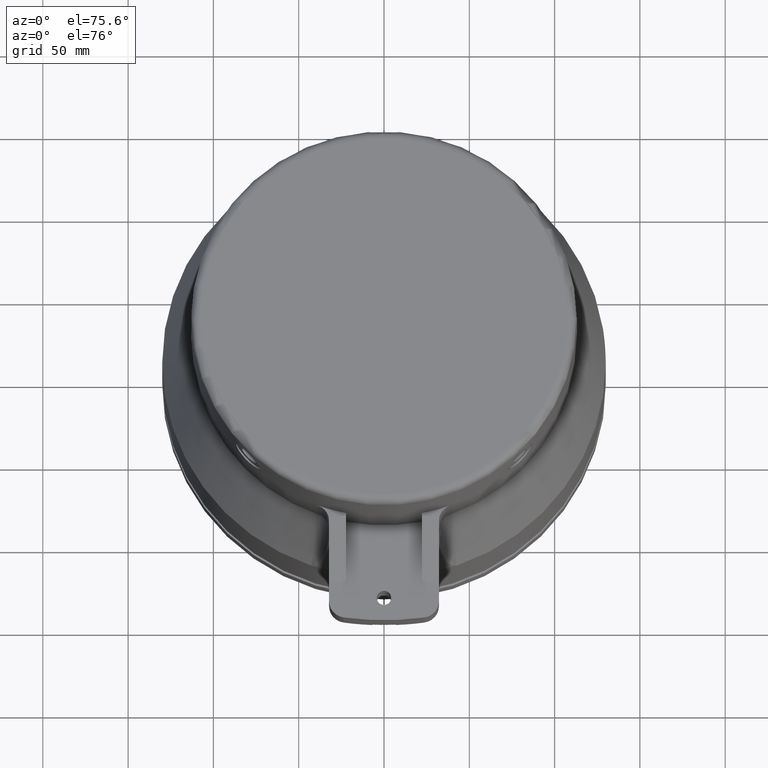
[diagram: clean part render]
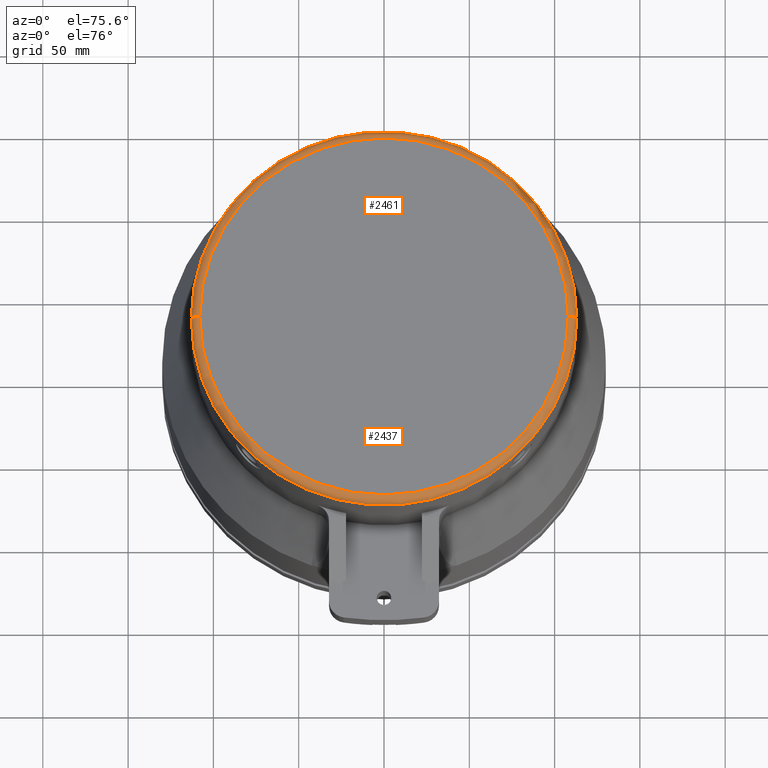
[diagram: same view with one multi-face feature highlighted, each face labeled with its STEP entity id]
A machine part, auxiliary view. The highlighted faces form ONE feature: a constant-radius fillet chain: 2 tangent blend faces with common blend radius 5 mm. The faces share edges in the B-rep.
Their STEP definitions:
[1] entity #2461 (Torus):
#1078=CARTESIAN_POINT('',(-1.08E2,5.155875726359E-13,-5.E0));
#1079=DIRECTION('',(0.E0,-1.E0,0.E0));
#1080=DIRECTION('',(0.E0,0.E0,1.E0));
#1081=AXIS2_PLACEMENT_3D('',#1078,#1079,#1080);
#1088=CARTESIAN_POINT('',(0.E0,0.E0,2.842170943040E-14));
#1089=DIRECTION('',(0.E0,0.E0,1.E0));
#1090=DIRECTION('',(1.E0,0.E0,0.E0));
#1091=AXIS2_PLACEMENT_3D('',#1088,#1089,#1090);
#1093=CARTESIAN_POINT('',(1.08E2,-5.462297281156E-13,-5.E0));
#1094=DIRECTION('',(0.E0,1.E0,0.E0));
#1095=DIRECTION('',(0.E0,0.E0,1.E0));
#1096=AXIS2_PLACEMENT_3D('',#1093,#1094,#1095);
#1098=CARTESIAN_POINT('',(0.E0,0.E0,-5.E0));
#1099=DIRECTION('',(0.E0,0.E0,1.E0));
#1100=DIRECTION('',(1.E0,0.E0,0.E0));
#1101=AXIS2_PLACEMENT_3D('',#1098,#1099,#1100);
#1692=CARTESIAN_POINT('',(-1.08E2,0.E0,0.E0));
#1693=CARTESIAN_POINT('',(1.08E2,-1.322618543079E-14,4.826098757659E-14));
#1694=VERTEX_POINT('',#1692);
#1695=VERTEX_POINT('',#1693);
#1696=CARTESIAN_POINT('',(-1.13E2,0.E0,-5.E0));
#1697=CARTESIAN_POINT('',(1.13E2,-1.383850883037E-14,-5.E0));
#1698=VERTEX_POINT('',#1696);
#1699=VERTEX_POINT('',#1697);
#2449=CARTESIAN_POINT('',(0.E0,0.E0,-5.E0));
#2450=DIRECTION('',(0.E0,0.E0,1.E0));
#2451=DIRECTION('',(9.999990741407E-1,-1.360778341099E-3,0.E0));
#2452=AXIS2_PLACEMENT_3D('',#2449,#2450,#2451);
#2453=TOROIDAL_SURFACE('',#2452,1.08E2,5.E0);
#2454=ORIENTED_EDGE('',*,*,#2444,.T.);
#2455=ORIENTED_EDGE('',*,*,#2433,.T.);
#2457=ORIENTED_EDGE('',*,*,#2456,.F.);
#2458=ORIENTED_EDGE('',*,*,#2430,.F.);
#2459=EDGE_LOOP('',(#2454,#2455,#2457,#2458));
#2460=FACE_OUTER_BOUND('',#2459,.F.);
#1082=CIRCLE('',#1081,5.E0);
#1092=CIRCLE('',#1091,1.08E2);
#1097=CIRCLE('',#1096,5.E0);
#1102=CIRCLE('',#1101,1.13E2);
#2430=EDGE_CURVE('',#1695,#1699,#1097,.T.);
#2433=EDGE_CURVE('',#1694,#1698,#1082,.T.);
#2444=EDGE_CURVE('',#1695,#1694,#1092,.T.);
#2456=EDGE_CURVE('',#1699,#1698,#1102,.T.);
#2461=ADVANCED_FACE('',(#2460),#2453,.T.);
[2] entity #2437 (Torus):
#872=CARTESIAN_POINT('',(0.E0,0.E0,-5.E0));
#873=DIRECTION('',(0.E0,0.E0,1.E0));
#874=DIRECTION('',(-1.E0,0.E0,0.E0));
#875=AXIS2_PLACEMENT_3D('',#872,#873,#874);
#1078=CARTESIAN_POINT('',(-1.08E2,5.155875726359E-13,-5.E0));
#1079=DIRECTION('',(0.E0,-1.E0,0.E0));
#1080=DIRECTION('',(0.E0,0.E0,1.E0));
#1081=AXIS2_PLACEMENT_3D('',#1078,#1079,#1080);
#1083=CARTESIAN_POINT('',(0.E0,0.E0,2.842170943040E-14));
#1084=DIRECTION('',(0.E0,0.E0,1.E0));
#1085=DIRECTION('',(-1.E0,0.E0,0.E0));
#1086=AXIS2_PLACEMENT_3D('',#1083,#1084,#1085);
#1093=CARTESIAN_POINT('',(1.08E2,-5.462297281156E-13,-5.E0));
#1094=DIRECTION('',(0.E0,1.E0,0.E0));
#1095=DIRECTION('',(0.E0,0.E0,1.E0));
#1096=AXIS2_PLACEMENT_3D('',#1093,#1094,#1095);
#1692=CARTESIAN_POINT('',(-1.08E2,0.E0,0.E0));
#1693=CARTESIAN_POINT('',(1.08E2,-1.322618543079E-14,4.826098757659E-14));
#1694=VERTEX_POINT('',#1692);
#1695=VERTEX_POINT('',#1693);
#1696=CARTESIAN_POINT('',(-1.13E2,0.E0,-5.E0));
#1697=CARTESIAN_POINT('',(1.13E2,-1.383850883037E-14,-5.E0));
#1698=VERTEX_POINT('',#1696);
#1699=VERTEX_POINT('',#1697);
#2423=CARTESIAN_POINT('',(0.E0,0.E0,-5.E0));
#2424=DIRECTION('',(0.E0,0.E0,1.E0));
#2425=DIRECTION('',(-9.999990741407E-1,1.360778341099E-3,0.E0));
#2426=AXIS2_PLACEMENT_3D('',#2423,#2424,#2425);
#2427=TOROIDAL_SURFACE('',#2426,1.08E2,5.E0);
#2429=ORIENTED_EDGE('',*,*,#2428,.T.);
#2431=ORIENTED_EDGE('',*,*,#2430,.T.);
#2432=ORIENTED_EDGE('',*,*,#2138,.F.);
#2434=ORIENTED_EDGE('',*,*,#2433,.F.);
#2435=EDGE_LOOP('',(#2429,#2431,#2432,#2434));
#2436=FACE_OUTER_BOUND('',#2435,.F.);
#876=CIRCLE('',#875,1.13E2);
#1082=CIRCLE('',#1081,5.E0);
#1087=CIRCLE('',#1086,1.08E2);
#1097=CIRCLE('',#1096,5.E0);
#2138=EDGE_CURVE('',#1698,#1699,#876,.T.);
#2428=EDGE_CURVE('',#1694,#1695,#1087,.T.);
#2430=EDGE_CURVE('',#1695,#1699,#1097,.T.);
#2433=EDGE_CURVE('',#1694,#1698,#1082,.T.);
#2437=ADVANCED_FACE('',(#2436),#2427,.T.);